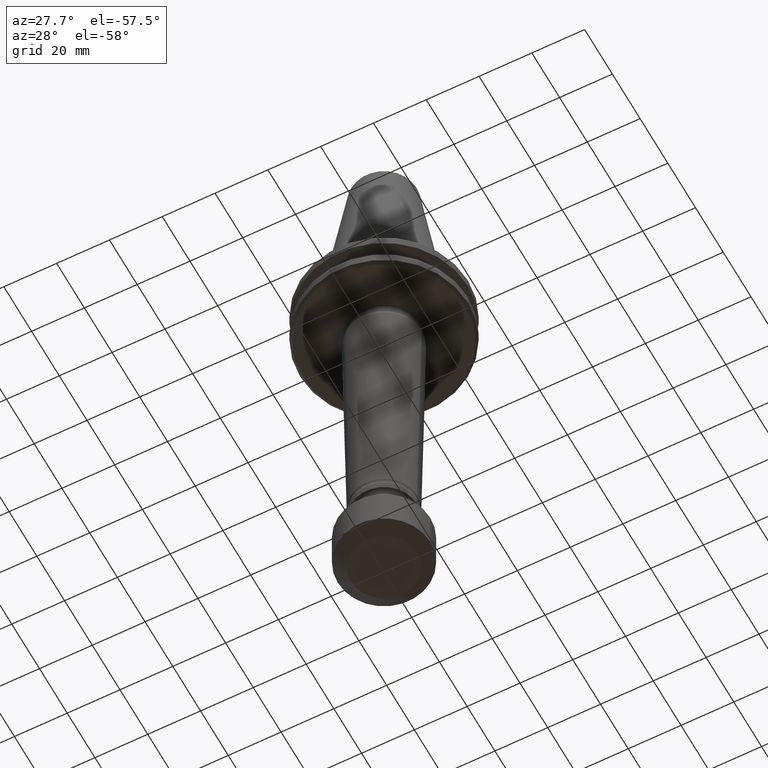
[diagram: clean part render]
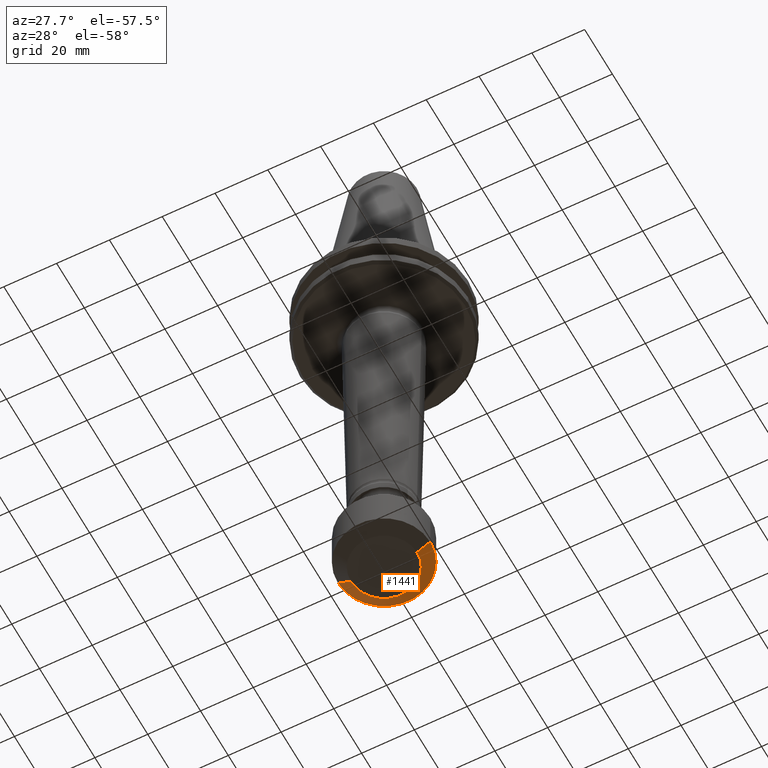
[diagram: same view with one face highlighted and labeled with its STEP entity id]
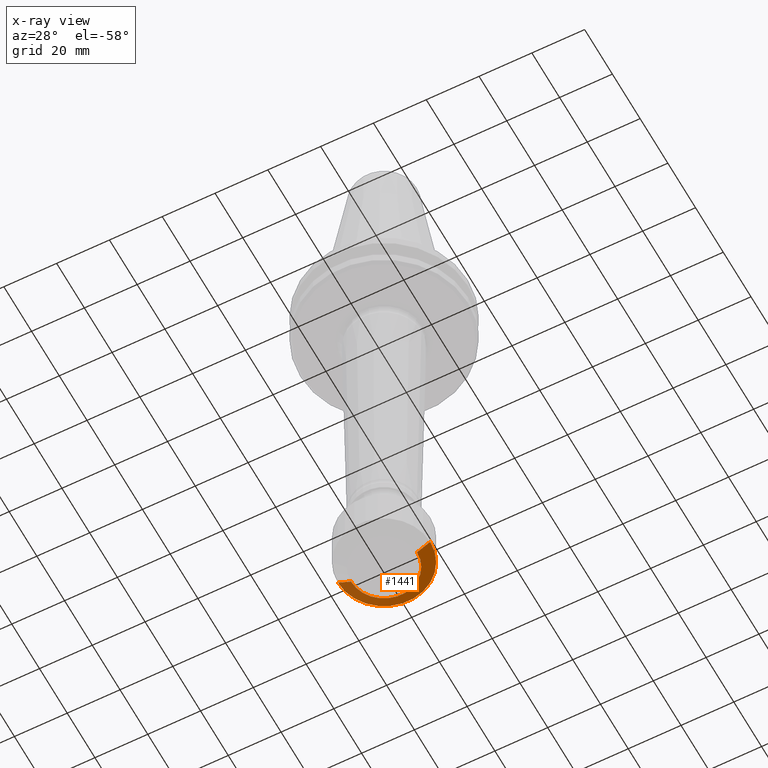
[diagram: x-ray of the same camera — body ghosted, the highlighted face saturated]
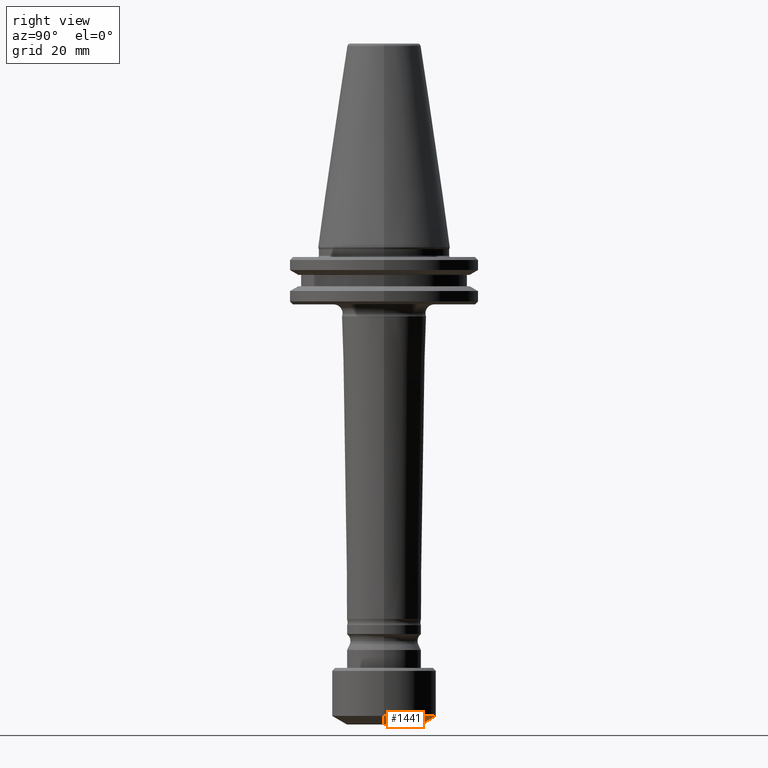
[diagram: same view with one face highlighted and labeled with its STEP entity id]
A machine part, auxiliary view. The second image highlights one B-rep face of the part: STEP entity #1441.
The next image is the same camera in x-ray: the body ghosted, the highlighted face saturated — about 0% of this face is hidden behind the body in this view.
A second angle (right view) of the same face is appended — the face is thin or edge-on in the first view.
In plain terms, the highlighted conical surface has half-angle 60 deg.
Its self-contained STEP definition (entity closure, byte-faithful):
#76 = DIRECTION ( 'NONE',  ( 1.000000000000000000, 0.0000000000000000000, 0.0000000000000000000 ) ) ;
#78 = CARTESIAN_POINT ( 'NONE',  ( -17.49999999999998900, 2.143131898507866700E-015, -8.613248653999983500 ) ) ;
#113 = EDGE_CURVE ( 'NONE', #788, #1039, #157, .T. ) ;
#132 = CARTESIAN_POINT ( 'NONE',  ( 17.49999999999998900, 0.0000000000000000000, -8.613248653999983500 ) ) ;
#134 = CARTESIAN_POINT ( 'NONE',  ( 12.49999999997752200, 0.0000000000000000000, -11.49999999996109800 ) ) ;
#157 = CIRCLE ( 'NONE', #234, 12.49999999997752200 ) ;
#180 = CARTESIAN_POINT ( 'NONE',  ( 0.0000000000000000000, 0.0000000000000000000, -11.49999999996109800 ) ) ;
#191 = CARTESIAN_POINT ( 'NONE',  ( -12.49999999997752200, 1.530808498931438800E-015, -11.49999999996109800 ) ) ;
#234 = AXIS2_PLACEMENT_3D ( 'NONE', #180, #688, #1003 ) ;
#237 = AXIS2_PLACEMENT_3D ( 'NONE', #1016, #305, #418 ) ;
#265 = EDGE_CURVE ( 'NONE', #1039, #629, #1520, .T. ) ;
#290 = VERTEX_POINT ( 'NONE', #132 ) ;
#305 = DIRECTION ( 'NONE',  ( -0.0000000000000000000, -0.0000000000000000000, 1.000000000000000000 ) ) ;
#324 = CARTESIAN_POINT ( 'NONE',  ( -12.49999999997752200, 1.836970198719652600E-015, -11.49999999996109800 ) ) ;
#333 = AXIS2_PLACEMENT_3D ( 'NONE', #1499, #840, #76 ) ;
#339 = CARTESIAN_POINT ( 'NONE',  ( 12.49999999997752200, 0.0000000000000000000, -11.49999999996109800 ) ) ;
#406 = DIRECTION ( 'NONE',  ( -0.8660254037844377100, 1.060575238724905700E-016, 0.5000000000000017800 ) ) ;
#418 = DIRECTION ( 'NONE',  ( 1.000000000000000000, 0.0000000000000000000, 0.0000000000000000000 ) ) ;
#423 = VECTOR ( 'NONE', #406, 999.9999999999998900 ) ;
#536 = ORIENTED_EDGE ( 'NONE', *, *, #265, .T. ) ;
#629 = VERTEX_POINT ( 'NONE', #78 ) ;
#634 = VECTOR ( 'NONE', #1452, 999.9999999999998900 ) ;
#637 = LINE ( 'NONE', #134, #634 ) ;
#688 = DIRECTION ( 'NONE',  ( -0.0000000000000000000, -0.0000000000000000000, 1.000000000000000000 ) ) ;
#737 = CIRCLE ( 'NONE', #333, 17.49999999999998900 ) ;
#788 = VERTEX_POINT ( 'NONE', #339 ) ;
#838 = ORIENTED_EDGE ( 'NONE', *, *, #1323, .F. ) ;
#840 = DIRECTION ( 'NONE',  ( -0.0000000000000000000, -0.0000000000000000000, 1.000000000000000000 ) ) ;
#847 = FACE_OUTER_BOUND ( 'NONE', #911, .T. ) ;
#881 = CONICAL_SURFACE ( 'NONE', #237, 12.49999999997752200, 1.047197551196595600 ) ;
#911 = EDGE_LOOP ( 'NONE', ( #1237, #536, #1090, #838 ) ) ;
#1003 = DIRECTION ( 'NONE',  ( 1.000000000000000000, 0.0000000000000000000, 0.0000000000000000000 ) ) ;
#1016 = CARTESIAN_POINT ( 'NONE',  ( 0.0000000000000000000, 0.0000000000000000000, -11.49999999996109800 ) ) ;
#1039 = VERTEX_POINT ( 'NONE', #324 ) ;
#1090 = ORIENTED_EDGE ( 'NONE', *, *, #1535, .F. ) ;
#1237 = ORIENTED_EDGE ( 'NONE', *, *, #113, .T. ) ;
#1323 = EDGE_CURVE ( 'NONE', #788, #290, #637, .T. ) ;
#1441 = ADVANCED_FACE ( 'NONE', ( #847 ), #881, .T. ) ;
#1452 = DIRECTION ( 'NONE',  ( 0.8660254037844377100, 0.0000000000000000000, 0.5000000000000017800 ) ) ;
#1499 = CARTESIAN_POINT ( 'NONE',  ( 0.0000000000000000000, 0.0000000000000000000, -8.613248653999983500 ) ) ;
#1520 = LINE ( 'NONE', #191, #423 ) ;
#1535 = EDGE_CURVE ( 'NONE', #290, #629, #737, .T. ) ;